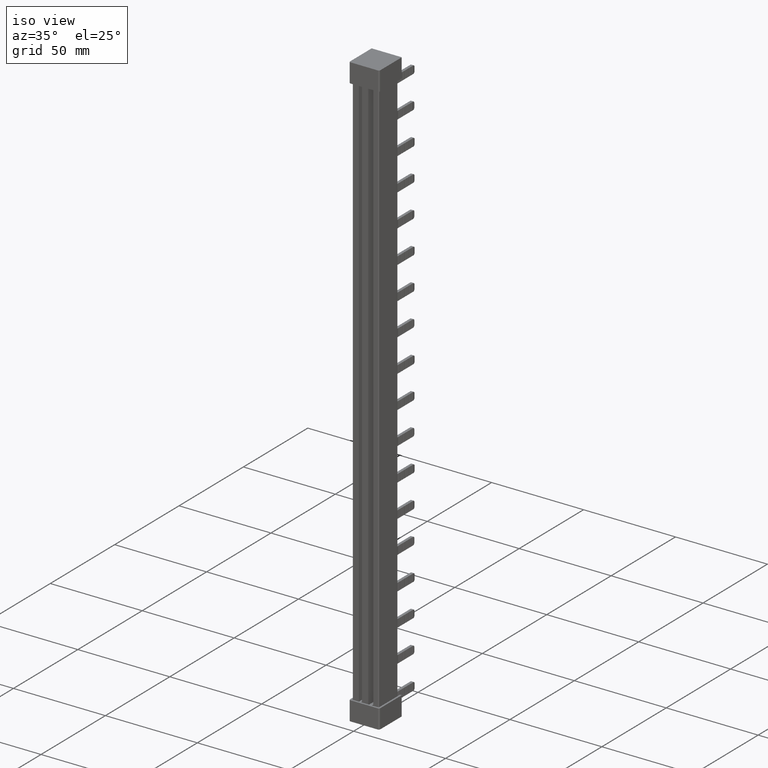
[diagram: clean part render]
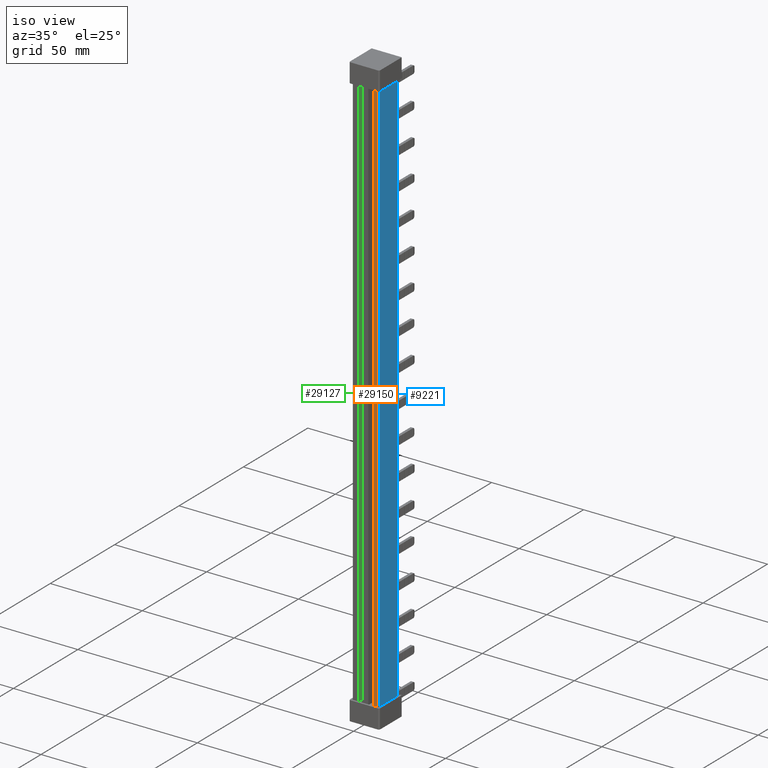
[diagram: same view with three faces highlighted in distinct colors, each labeled with its STEP entity id]
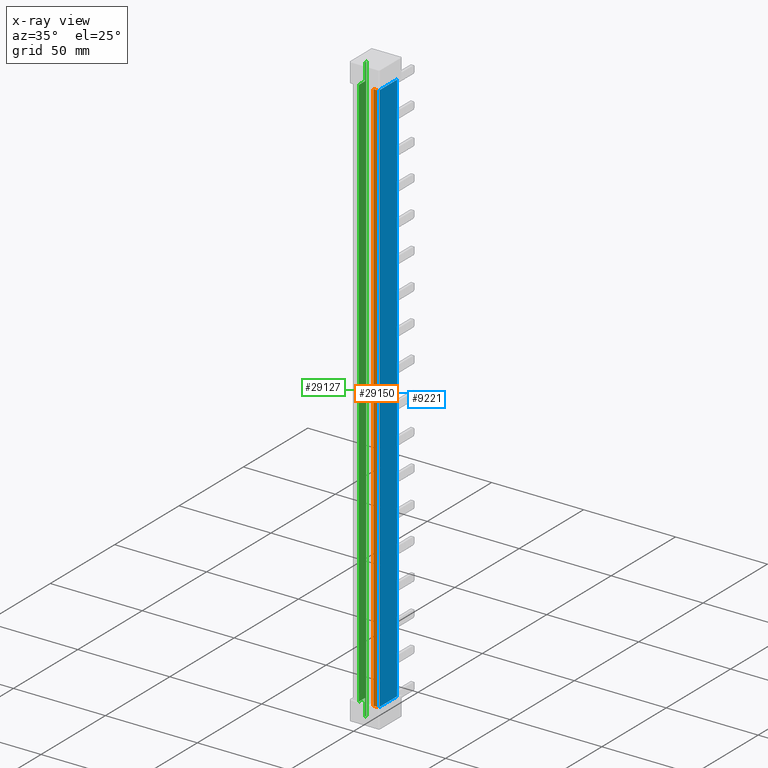
[diagram: x-ray of the same camera — body ghosted, the three highlighted faces saturated]
A machine part, iso view with three faces highlighted in distinct colors.
The next image is the same camera in x-ray (body ghosted, the three faces saturated) — at least one of them is partly hidden behind the body in this view.
Their STEP definitions:

[orange] entity #29150 — the highlighted planar face has unit normal (0, 1, 0).
#1815 = AXIS2_PLACEMENT_3D ( 'NONE', #24193, #24157, #24164 ) ;
#1827 = VECTOR ( 'NONE', #24228, 1000.000000000000000 ) ;
#1895 = VECTOR ( 'NONE', #24443, 1000.000000000000000 ) ;
#1904 = VECTOR ( 'NONE', #24419, 1000.000000000000000 ) ;
#8302 = CARTESIAN_POINT ( 'NONE',  ( 10.67385165201981100, -3.885780586188047900E-013, -94.60000000005328500 ) ) ;
#8329 = CARTESIAN_POINT ( 'NONE',  ( 10.67385165201981100, -3.885780586188047900E-013, 208.6000000000532900 ) ) ;
#9860 = EDGE_CURVE ( 'NONE', #30102, #30139, #21388, .T. ) ;
#13588 = ORIENTED_EDGE ( 'NONE', *, *, #9860, .F. ) ;
#13596 = ORIENTED_EDGE ( 'NONE', *, *, #29203, .T. ) ;
#13619 = ORIENTED_EDGE ( 'NONE', *, *, #29159, .F. ) ;
#13628 = ORIENTED_EDGE ( 'NONE', *, *, #29213, .F. ) ;
#15873 = CARTESIAN_POINT ( 'NONE',  ( 13.17637477970035000, -4.996003610813204400E-013, -94.60000000005206300 ) ) ;
#15875 = CARTESIAN_POINT ( 'NONE',  ( 13.17637477970035000, -4.996003610813204400E-013, 208.6000000000520600 ) ) ;
#21388 = LINE ( 'NONE', #21580, #34348 ) ;
#21556 = DIRECTION ( 'NONE',  ( -0.0000000000000000000, 0.0000000000000000000, -1.000000000000000000 ) ) ;
#21580 = CARTESIAN_POINT ( 'NONE',  ( 13.17637477970035000, -4.996003610813204400E-013, 219.0000000000000000 ) ) ;
#22785 = VERTEX_POINT ( 'NONE', #8329 ) ;
#22819 = VERTEX_POINT ( 'NONE', #8302 ) ;
#24157 = DIRECTION ( 'NONE',  ( 0.0000000000000000000, 1.000000000000000000, 0.0000000000000000000 ) ) ;
#24161 = PLANE ( 'NONE',  #1815 ) ;
#24164 = DIRECTION ( 'NONE',  ( 0.0000000000000000000, -0.0000000000000000000, 1.000000000000000000 ) ) ;
#24193 = CARTESIAN_POINT ( 'NONE',  ( 6.525548534933072600, -4.996003610813204400E-013, 219.0000000000000000 ) ) ;
#24194 = FACE_OUTER_BOUND ( 'NONE', #27816, .T. ) ;
#24205 = LINE ( 'NONE', #24212, #1827 ) ;
#24212 = CARTESIAN_POINT ( 'NONE',  ( 6.466000000103465900, -4.996003610813204400E-013, 208.6000000000553900 ) ) ;
#24228 = DIRECTION ( 'NONE',  ( 1.000000000000000000, 0.0000000000000000000, -4.965472477636011600E-013 ) ) ;
#24403 = LINE ( 'NONE', #24442, #1895 ) ;
#24415 = LINE ( 'NONE', #24418, #1904 ) ;
#24418 = CARTESIAN_POINT ( 'NONE',  ( 6.466000000103465900, -4.996003610813204400E-013, -94.60000000005538800 ) ) ;
#24419 = DIRECTION ( 'NONE',  ( -1.000000000000000000, 0.0000000000000000000, -4.965472477636011600E-013 ) ) ;
#24442 = CARTESIAN_POINT ( 'NONE',  ( 10.67385165201978500, -2.931682674400804000E-013, 219.0000000000000000 ) ) ;
#24443 = DIRECTION ( 'NONE',  ( -0.0000000000000000000, -0.0000000000000000000, -1.000000000000000000 ) ) ;
#27816 = EDGE_LOOP ( 'NONE', ( #13619, #13596, #13628, #13588 ) ) ;
#29150 = ADVANCED_FACE ( 'NONE', ( #24194 ), #24161, .F. ) ;
#29159 = EDGE_CURVE ( 'NONE', #22785, #30102, #24205, .T. ) ;
#29203 = EDGE_CURVE ( 'NONE', #22785, #22819, #24403, .T. ) ;
#29213 = EDGE_CURVE ( 'NONE', #30139, #22819, #24415, .T. ) ;
#30102 = VERTEX_POINT ( 'NONE', #15875 ) ;
#30139 = VERTEX_POINT ( 'NONE', #15873 ) ;
#34348 = VECTOR ( 'NONE', #21556, 1000.000000000000000 ) ;

[blue] entity #9221 — the highlighted planar face has unit normal (1, -0, 0).
#2392 = VECTOR ( 'NONE', #7195, 1000.000000000000000 ) ;
#2411 = VECTOR ( 'NONE', #7235, 1000.000000000000000 ) ;
#2465 = VECTOR ( 'NONE', #21334, 1000.000000000000000 ) ;
#7195 = DIRECTION ( 'NONE',  ( -0.0000000000000000000, -0.0000000000000000000, 1.000000000000000000 ) ) ;
#7212 = CARTESIAN_POINT ( 'NONE',  ( 13.67637477970029600, 14.29107189157535600, 219.0000000000000000 ) ) ;
#7225 = LINE ( 'NONE', #7212, #2392 ) ;
#7234 = CARTESIAN_POINT ( 'NONE',  ( 13.67637477970029600, -8.991461328757369000, -94.60000000005183600 ) ) ;
#7235 = DIRECTION ( 'NONE',  ( 0.0000000000000000000, -1.000000000000000000, 0.0000000000000000000 ) ) ;
#7273 = LINE ( 'NONE', #7234, #2411 ) ;
#8230 = CARTESIAN_POINT ( 'NONE',  ( 13.67637477970029600, 14.29107189157535600, -94.60000000005183600 ) ) ;
#8284 = CARTESIAN_POINT ( 'NONE',  ( 13.67637477970029600, 14.29107189157535600, 208.6000000000518100 ) ) ;
#9221 = ADVANCED_FACE ( 'NONE', ( #19149 ), #19118, .T. ) ;
#9876 = EDGE_CURVE ( 'NONE', #30147, #30099, #21670, .T. ) ;
#13410 = ORIENTED_EDGE ( 'NONE', *, *, #29699, .F. ) ;
#13460 = ORIENTED_EDGE ( 'NONE', *, *, #29620, .T. ) ;
#13479 = ORIENTED_EDGE ( 'NONE', *, *, #9876, .T. ) ;
#13524 = ORIENTED_EDGE ( 'NONE', *, *, #29640, .F. ) ;
#15816 = CARTESIAN_POINT ( 'NONE',  ( 13.67637477970029600, 0.4999999999992788000, -94.60000000005183600 ) ) ;
#15916 = CARTESIAN_POINT ( 'NONE',  ( 13.67637477970029600, 0.4999999999992788000, 208.6000000000518100 ) ) ;
#19118 = PLANE ( 'NONE',  #26190 ) ;
#19123 = CARTESIAN_POINT ( 'NONE',  ( 13.67637477970029600, -8.991461328757369000, 219.0000000000000000 ) ) ;
#19145 = DIRECTION ( 'NONE',  ( 1.000000000000000000, -0.0000000000000000000, 0.0000000000000000000 ) ) ;
#19149 = FACE_OUTER_BOUND ( 'NONE', #27765, .T. ) ;
#19162 = DIRECTION ( 'NONE',  ( 0.0000000000000000000, 0.0000000000000000000, -1.000000000000000000 ) ) ;
#21260 = LINE ( 'NONE', #21314, #2465 ) ;
#21314 = CARTESIAN_POINT ( 'NONE',  ( 13.67637477970029600, -8.991461328757369000, 208.6000000000518100 ) ) ;
#21334 = DIRECTION ( 'NONE',  ( 0.0000000000000000000, 1.000000000000000000, 0.0000000000000000000 ) ) ;
#21615 = DIRECTION ( 'NONE',  ( 0.0000000000000000000, 0.0000000000000000000, -1.000000000000000000 ) ) ;
#21656 = CARTESIAN_POINT ( 'NONE',  ( 13.67637477970029600, 0.4999999999992788000, 219.0000000000000000 ) ) ;
#21670 = LINE ( 'NONE', #21656, #34400 ) ;
#22641 = VERTEX_POINT ( 'NONE', #8284 ) ;
#22708 = VERTEX_POINT ( 'NONE', #8230 ) ;
#26190 = AXIS2_PLACEMENT_3D ( 'NONE', #19123, #19145, #19162 ) ;
#27765 = EDGE_LOOP ( 'NONE', ( #13524, #13460, #13410, #13479 ) ) ;
#29620 = EDGE_CURVE ( 'NONE', #22708, #22641, #7225, .T. ) ;
#29640 = EDGE_CURVE ( 'NONE', #22708, #30099, #7273, .T. ) ;
#29699 = EDGE_CURVE ( 'NONE', #30147, #22641, #21260, .T. ) ;
#30099 = VERTEX_POINT ( 'NONE', #15816 ) ;
#30147 = VERTEX_POINT ( 'NONE', #15916 ) ;
#34400 = VECTOR ( 'NONE', #21615, 1000.000000000000000 ) ;

[green] entity #29127 — the highlighted planar face has unit normal (-1, 0, 0).
#1755 = AXIS2_PLACEMENT_3D ( 'NONE', #24086, #24079, #24082 ) ;
#1976 = VECTOR ( 'NONE', #24676, 1000.000000000000000 ) ;
#1990 = VECTOR ( 'NONE', #24855, 1000.000000000000000 ) ;
#1995 = VECTOR ( 'NONE', #24911, 1000.000000000000000 ) ;
#2054 = VECTOR ( 'NONE', #6397, 1000.000000000000000 ) ;
#2064 = VECTOR ( 'NONE', #6365, 1000.000000000000000 ) ;
#2126 = VECTOR ( 'NONE', #6508, 1000.000000000000000 ) ;
#2213 = VECTOR ( 'NONE', #6667, 1000.000000000000000 ) ;
#2225 = VECTOR ( 'NONE', #6622, 1000.000000000000000 ) ;
#6352 = CARTESIAN_POINT ( 'NONE',  ( 2.900000000000013700, -11.04623440810184900, -94.60000000005716500 ) ) ;
#6354 = LINE ( 'NONE', #6352, #2064 ) ;
#6365 = DIRECTION ( 'NONE',  ( 0.0000000000000000000, -1.000000000000000000, 0.0000000000000000000 ) ) ;
#6397 = DIRECTION ( 'NONE',  ( -0.0000000000000000000, 0.0000000000000000000, -1.000000000000000000 ) ) ;
#6398 = LINE ( 'NONE', #6405, #2054 ) ;
#6405 = CARTESIAN_POINT ( 'NONE',  ( 2.900000000000013700, 0.0000000000000000000, 219.0000000000000000 ) ) ;
#6454 = LINE ( 'NONE', #6526, #2126 ) ;
#6508 = DIRECTION ( 'NONE',  ( 0.0000000000000000000, 1.000000000000000000, 0.0000000000000000000 ) ) ;
#6526 = CARTESIAN_POINT ( 'NONE',  ( 2.900000000000013700, 16.29999999999973100, -103.8000000000571200 ) ) ;
#6613 = LINE ( 'NONE', #6628, #2213 ) ;
#6622 = DIRECTION ( 'NONE',  ( 0.0000000000000000000, 0.0000000000000000000, 1.000000000000000000 ) ) ;
#6623 = LINE ( 'NONE', #6663, #2225 ) ;
#6628 = CARTESIAN_POINT ( 'NONE',  ( 2.900000000000013700, 16.29999999999973100, 217.8000000000571100 ) ) ;
#6663 = CARTESIAN_POINT ( 'NONE',  ( 2.900000000000013700, 4.778182006358747500, 219.0000000000000000 ) ) ;
#6667 = DIRECTION ( 'NONE',  ( -0.0000000000000000000, -1.000000000000000000, -0.0000000000000000000 ) ) ;
#8292 = CARTESIAN_POINT ( 'NONE',  ( 2.900000000000013700, 4.778182006358747500, 208.6000000000571500 ) ) ;
#8360 = CARTESIAN_POINT ( 'NONE',  ( 2.900000000000013700, 4.778182006356581200, -94.60000000005716500 ) ) ;
#8380 = CARTESIAN_POINT ( 'NONE',  ( 2.900000000000013700, 0.0000000000000000000, -94.60000000005716500 ) ) ;
#8384 = CARTESIAN_POINT ( 'NONE',  ( 2.900000000000013700, 4.778182006356581200, -103.8000000000571400 ) ) ;
#8396 = CARTESIAN_POINT ( 'NONE',  ( 2.900000000000013700, 0.0000000000000000000, 208.6000000000571500 ) ) ;
#8404 = CARTESIAN_POINT ( 'NONE',  ( 2.900000000000013700, 5.673275106952147000, -103.8000000000571200 ) ) ;
#8411 = CARTESIAN_POINT ( 'NONE',  ( 2.900000000000013700, 5.673275106952147000, 217.8000000000571400 ) ) ;
#8462 = CARTESIAN_POINT ( 'NONE',  ( 2.900000000000013700, 4.778182006357668300, 217.8000000000571400 ) ) ;
#22803 = VERTEX_POINT ( 'NONE', #8292 ) ;
#22889 = VERTEX_POINT ( 'NONE', #8360 ) ;
#22924 = VERTEX_POINT ( 'NONE', #8380 ) ;
#22935 = VERTEX_POINT ( 'NONE', #8384 ) ;
#22948 = VERTEX_POINT ( 'NONE', #8396 ) ;
#22955 = VERTEX_POINT ( 'NONE', #8411 ) ;
#22957 = VERTEX_POINT ( 'NONE', #8404 ) ;
#23049 = VERTEX_POINT ( 'NONE', #8462 ) ;
#24073 = FACE_OUTER_BOUND ( 'NONE', #27888, .T. ) ;
#24079 = DIRECTION ( 'NONE',  ( -1.000000000000000000, 0.0000000000000000000, 0.0000000000000000000 ) ) ;
#24082 = DIRECTION ( 'NONE',  ( 0.0000000000000000000, 0.0000000000000000000, 1.000000000000000000 ) ) ;
#24086 = CARTESIAN_POINT ( 'NONE',  ( 2.900000000000013700, -8.991461328757369000, 219.0000000000000000 ) ) ;
#24094 = PLANE ( 'NONE',  #1755 ) ;
#24671 = LINE ( 'NONE', #24695, #1976 ) ;
#24676 = DIRECTION ( 'NONE',  ( 0.0000000000000000000, 1.000000000000000000, 0.0000000000000000000 ) ) ;
#24695 = CARTESIAN_POINT ( 'NONE',  ( 2.900000000000013700, -11.04623440810184900, 208.6000000000571500 ) ) ;
#24855 = DIRECTION ( 'NONE',  ( 0.0000000000000000000, 0.0000000000000000000, 1.000000000000000000 ) ) ;
#24865 = CARTESIAN_POINT ( 'NONE',  ( 2.900000000000013700, 5.673275106952147000, 219.0000000000000000 ) ) ;
#24881 = LINE ( 'NONE', #24899, #1990 ) ;
#24899 = CARTESIAN_POINT ( 'NONE',  ( 2.900000000000013700, 4.778182006356581200, 219.0000000000000000 ) ) ;
#24908 = LINE ( 'NONE', #24865, #1995 ) ;
#24911 = DIRECTION ( 'NONE',  ( -0.0000000000000000000, -0.0000000000000000000, -1.000000000000000000 ) ) ;
#27888 = EDGE_LOOP ( 'NONE', ( #30430, #30433, #30439, #30402, #30432, #30418, #30407, #30446 ) ) ;
#29127 = ADVANCED_FACE ( 'NONE', ( #24073 ), #24094, .F. ) ;
#29269 = EDGE_CURVE ( 'NONE', #22948, #22803, #24671, .T. ) ;
#29300 = EDGE_CURVE ( 'NONE', #22935, #22889, #24881, .T. ) ;
#29304 = EDGE_CURVE ( 'NONE', #22955, #22957, #24908, .T. ) ;
#29350 = EDGE_CURVE ( 'NONE', #22889, #22924, #6354, .T. ) ;
#29368 = EDGE_CURVE ( 'NONE', #22948, #22924, #6398, .T. ) ;
#29393 = EDGE_CURVE ( 'NONE', #22935, #22957, #6454, .T. ) ;
#29439 = EDGE_CURVE ( 'NONE', #22955, #23049, #6613, .T. ) ;
#29443 = EDGE_CURVE ( 'NONE', #22803, #23049, #6623, .T. ) ;
#30402 = ORIENTED_EDGE ( 'NONE', *, *, #29304, .F. ) ;
#30407 = ORIENTED_EDGE ( 'NONE', *, *, #29269, .F. ) ;
#30418 = ORIENTED_EDGE ( 'NONE', *, *, #29443, .F. ) ;
#30430 = ORIENTED_EDGE ( 'NONE', *, *, #29350, .F. ) ;
#30432 = ORIENTED_EDGE ( 'NONE', *, *, #29439, .T. ) ;
#30433 = ORIENTED_EDGE ( 'NONE', *, *, #29300, .F. ) ;
#30439 = ORIENTED_EDGE ( 'NONE', *, *, #29393, .T. ) ;
#30446 = ORIENTED_EDGE ( 'NONE', *, *, #29368, .T. ) ;